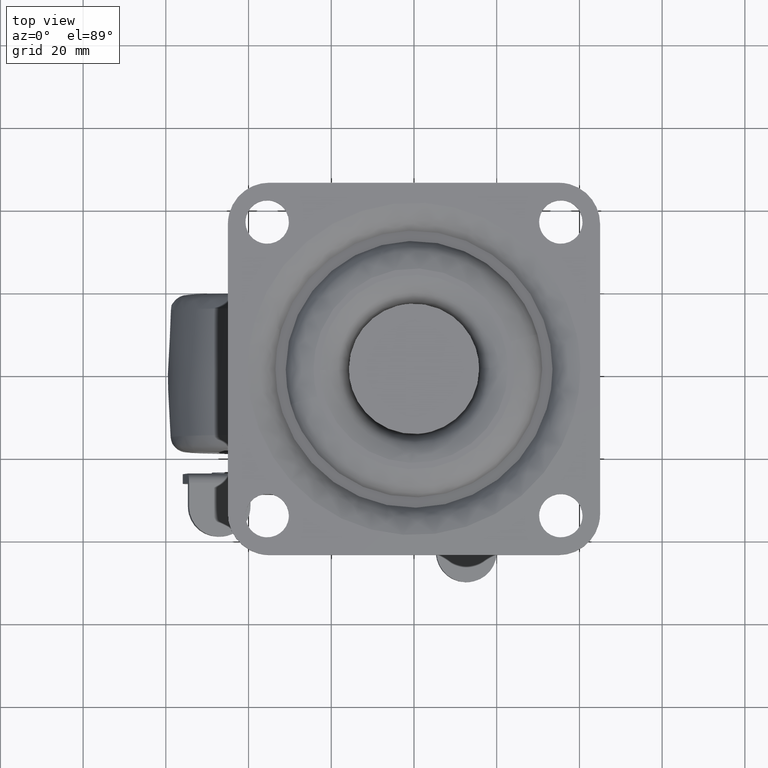
[diagram: clean part render]
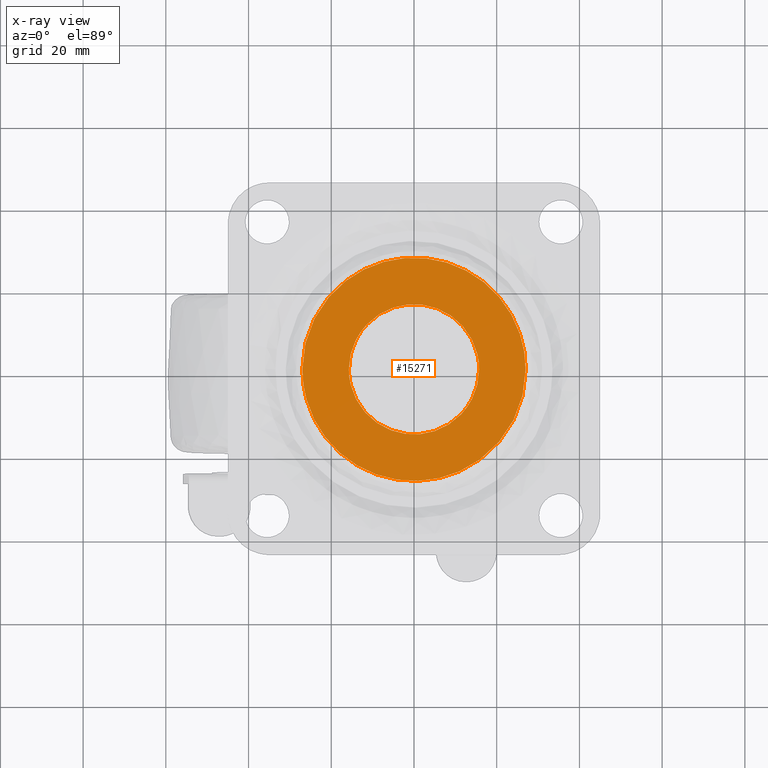
[diagram: x-ray — body ghosted, one internal face saturated and labeled with its STEP entity id]
A machine part, top view, then the same camera in x-ray: the body is ghosted and one INTERNAL B-rep face — a face not visible from any outside direction — is saturated and labeled: STEP entity #15271.
In plain terms, the highlighted face is a freeform B-spline surface patch.
Its self-contained STEP definition (entity closure, byte-faithful):
#15052=CARTESIAN_POINT('',(11.424646860448060,-10.841584022367480,-8.200000000000102));
#15053=VERTEX_POINT('',#15052);
#15059=CARTESIAN_POINT('',(15.750000000000000,0.0,-8.200000000000101));
#15060=VERTEX_POINT('',#15059);
#15061=CARTESIAN_POINT('',(15.750000000000000,0.0,-8.200000000000101));
#15062=CARTESIAN_POINT('',(15.749999999999995,-6.283612413775906,-8.200000000000101));
#15063=CARTESIAN_POINT('',(11.424646860448073,-10.841584022367488,-8.200000000000101));
#15071=(BOUNDED_CURVE()B_SPLINE_CURVE(2,(#15061,#15062,#15063),.UNSPECIFIED.,.F.,.U.)B_SPLINE_CURVE_WITH_KNOTS((3,3),(0.500000000000000,0.621049519462403),.UNSPECIFIED.)CURVE()GEOMETRIC_REPRESENTATION_ITEM()RATIONAL_B_SPLINE_CURVE((1.0,0.858181666435341,0.853699661902367))REPRESENTATION_ITEM(''));
#15072=EDGE_CURVE('',#15060,#15053,#15071,.T.);
#15074=CARTESIAN_POINT('',(-11.424646860448050,10.841584022367480,-8.200000000000102));
#15075=VERTEX_POINT('',#15074);
#15076=CARTESIAN_POINT('',(-11.424646860448071,10.841584022367492,-8.200000000000101));
#15077=CARTESIAN_POINT('',(-6.766734463832701,15.750000000000002,-8.200000000000101));
#15078=CARTESIAN_POINT('',(0.0,15.750000000000000,-8.200000000000101));
#15079=CARTESIAN_POINT('',(15.749999999999995,15.749999999999995,-8.200000000000101));
#15080=CARTESIAN_POINT('',(15.750000000000000,0.0,-8.200000000000101));
#15088=(BOUNDED_CURVE()B_SPLINE_CURVE(2,(#15076,#15077,#15078,#15079,#15080),.UNSPECIFIED.,.F.,.U.)B_SPLINE_CURVE_WITH_KNOTS((3,2,3),(0.121049519462403,0.250000000000000,0.500000000000000),.UNSPECIFIED.)CURVE()GEOMETRIC_REPRESENTATION_ITEM()RATIONAL_B_SPLINE_CURVE((0.853699661902367,0.848925114751207,1.0,0.707106781186547,1.0))REPRESENTATION_ITEM(''));
#15089=EDGE_CURVE('',#15075,#15060,#15088,.T.);
#15133=CARTESIAN_POINT('',(-15.750000000000000,0.0,-8.200000000000101));
#15134=VERTEX_POINT('',#15133);
#15135=CARTESIAN_POINT('',(-15.750000000000000,0.0,-8.200000000000101));
#15136=CARTESIAN_POINT('',(-15.749999999999996,6.283612413775908,-8.200000000000101));
#15137=CARTESIAN_POINT('',(-11.424646860448071,10.841584022367492,-8.200000000000101));
#15145=(BOUNDED_CURVE()B_SPLINE_CURVE(2,(#15135,#15136,#15137),.UNSPECIFIED.,.F.,.U.)B_SPLINE_CURVE_WITH_KNOTS((3,3),(0.0,0.121049519462403),.UNSPECIFIED.)CURVE()GEOMETRIC_REPRESENTATION_ITEM()RATIONAL_B_SPLINE_CURVE((1.0,0.858181666435340,0.853699661902367))REPRESENTATION_ITEM(''));
#15146=EDGE_CURVE('',#15134,#15075,#15145,.T.);
#15148=CARTESIAN_POINT('',(11.424646860448073,-10.841584022367488,-8.200000000000101));
#15149=CARTESIAN_POINT('',(6.766734463832703,-15.750000000000002,-8.200000000000101));
#15150=CARTESIAN_POINT('',(0.0,-15.750000000000000,-8.200000000000101));
#15151=CARTESIAN_POINT('',(-15.749999999999995,-15.749999999999995,-8.200000000000101));
#15152=CARTESIAN_POINT('',(-15.750000000000000,0.0,-8.200000000000101));
#15160=(BOUNDED_CURVE()B_SPLINE_CURVE(2,(#15148,#15149,#15150,#15151,#15152),.UNSPECIFIED.,.F.,.U.)B_SPLINE_CURVE_WITH_KNOTS((3,2,3),(0.621049519462403,0.750000000000000,1.0),.UNSPECIFIED.)CURVE()GEOMETRIC_REPRESENTATION_ITEM()RATIONAL_B_SPLINE_CURVE((0.853699661902367,0.848925114751207,1.0,0.707106781186547,1.0))REPRESENTATION_ITEM(''));
#15161=EDGE_CURVE('',#15053,#15134,#15160,.T.);
#15195=CARTESIAN_POINT('',(29.697299897250300,-29.697299895337441,-8.200000000000101));
#15196=CARTESIAN_POINT('',(-29.697301345643162,-29.697299895337441,-8.200000000000101));
#15197=CARTESIAN_POINT('',(29.697299897250300,29.697301343730309,-8.200000000000101));
#15198=CARTESIAN_POINT('',(-29.697301345643162,29.697301343730309,-8.200000000000101));
#15199=B_SPLINE_SURFACE_WITH_KNOTS('',1,1,((#15195,#15197),(#15196,#15198)),.UNSPECIFIED.,.F.,.F.,.U.,(2,2),(2,2),(0.0,59.394601242893458),(0.0,59.394601239067747),.UNSPECIFIED.);
#15200=CARTESIAN_POINT('',(27.000000001739039,2.634884E-016,-8.200000000000051));
#15201=VERTEX_POINT('',#15200);
#15202=CARTESIAN_POINT('',(-27.000000001739039,-2.033979E-015,-8.199999999999999));
#15203=VERTEX_POINT('',#15202);
#15204=CARTESIAN_POINT('',(27.000000001739039,2.634884E-016,-8.200000000000051));
#15205=CARTESIAN_POINT('',(27.000059788300799,-1.325335467183702,-8.200000000000060));
#15206=CARTESIAN_POINT('',(26.792268587396929,-4.141722424634215,-8.200000000000042));
#15207=CARTESIAN_POINT('',(25.970839307060579,-7.648618260294605,-8.200000000000056));
#15208=CARTESIAN_POINT('',(24.872956758826820,-10.601800385348829,-8.200000000000058));
#15209=CARTESIAN_POINT('',(23.436410380047018,-13.592049589555870,-8.200000000000010));
#15210=CARTESIAN_POINT('',(21.279617928050911,-16.819786257627118,-8.200000000000046));
#15211=CARTESIAN_POINT('',(18.168908740760418,-20.127504592238441,-8.200000000000072));
#15212=CARTESIAN_POINT('',(15.007758780426339,-22.563360661771569,-8.199999999999951));
#15213=CARTESIAN_POINT('',(11.674592187149790,-24.424578395647170,-8.200000000000223));
#15214=CARTESIAN_POINT('',(8.698104161791557,-25.625475688907461,-8.200000000000047));
#15215=CARTESIAN_POINT('',(5.230995456071364,-26.573582479409438,-8.199999999999786));
#15216=CARTESIAN_POINT('',(1.770358724804532,-27.032803380255991,-8.200000000000630));
#15217=CARTESIAN_POINT('',(-1.603817640623454,-27.001609412372030,-8.199999999999555));
#15218=CARTESIAN_POINT('',(-5.064171435773509,-26.607278960972440,-8.200000000000410));
#15219=CARTESIAN_POINT('',(-8.449730036621464,-25.748194804824220,-8.199999999999843));
#15220=CARTESIAN_POINT('',(-11.614254445084219,-24.425849923015729,-8.200000000000051));
#15221=CARTESIAN_POINT('',(-14.092198903888720,-23.081767907624720,-8.200000000000005));
#15222=CARTESIAN_POINT('',(-16.290469945314332,-21.593352945402181,-8.200000000000019));
#15223=CARTESIAN_POINT('',(-18.490374152124922,-19.742264790410339,-8.200000000000001));
#15224=CARTESIAN_POINT('',(-20.870157839107851,-17.273396573859440,-8.200000000000015));
#15225=CARTESIAN_POINT('',(-23.272939756120589,-13.949244281937229,-8.199999999999958));
#15226=CARTESIAN_POINT('',(-25.071893112480439,-10.263167851223940,-8.200000000000156));
#15227=CARTESIAN_POINT('',(-26.229628892722889,-6.684878888436626,-8.199999999999518));
#15228=CARTESIAN_POINT('',(-26.857512151997209,-3.423836122725524,-8.200000000001431));
#15229=CARTESIAN_POINT('',(-27.000025726324889,-1.104462857147788,-8.199999999999019));
#15230=CARTESIAN_POINT('',(-27.000000001739039,-2.033979E-015,-8.199999999999999));
#15231=B_SPLINE_CURVE_WITH_KNOTS('',3,(#15204,#15205,#15206,#15207,#15208,#15209,#15210,#15211,#15212,#15213,#15214,#15215,#15216,#15217,#15218,#15219,#15220,#15221,#15222,#15223,#15224,#15225,#15226,#15227,#15228,#15229,#15230),.UNSPECIFIED.,.F.,.U.,(4,1,1,1,1,1,1,1,1,1,1,1,1,1,1,1,1,1,1,1,1,1,1,1,4),(0.000000102047991,3.976013091894885,8.449174064406009,10.768520831215641,13.419255515052431,18.389390014275850,22.365478648804650,27.004254118298000,30.317683145466841,33.796750918287600,36.613170176226653,41.086218469489062,44.233880177756589,46.718935927809568,51.523378650124563,54.671155121315472,56.990515826156880,59.972606158726279,62.623330201269169,65.605402775894788,70.244186655266461,74.882951030542927,77.864993738503841,81.509742557205797,84.823134712338017),.UNSPECIFIED.);
#15232=EDGE_CURVE('',#15201,#15203,#15231,.T.);
#15233=ORIENTED_EDGE('',*,*,#15232,.F.);
#15234=CARTESIAN_POINT('',(-27.000000001739039,-2.033979E-015,-8.199999999999999));
#15235=CARTESIAN_POINT('',(-27.000365881728960,1.932844755084178,-8.199999999999982));
#15236=CARTESIAN_POINT('',(-26.696202965761231,4.749066578085253,-8.200000000000021));
#15237=CARTESIAN_POINT('',(-25.528295258104691,9.072607688587496,-8.200000000000028));
#15238=CARTESIAN_POINT('',(-23.998840014790751,12.640620932460010,-8.199999999999948));
#15239=CARTESIAN_POINT('',(-21.605871611634718,16.368568970700480,-8.200000000000077));
#15240=CARTESIAN_POINT('',(-19.183851887520550,19.107678154293978,-8.199999999999953));
#15241=CARTESIAN_POINT('',(-16.768445667571989,21.217081193858959,-8.200000000000017));
#15242=CARTESIAN_POINT('',(-14.428037111301670,22.886992000738800,-8.200000000000012));
#15243=CARTESIAN_POINT('',(-11.964430226107879,24.262711717275678,-8.200000000000019));
#15244=CARTESIAN_POINT('',(-9.115308808239776,25.473676274629209,-8.199999999999964));
#15245=CARTESIAN_POINT('',(-5.776057786376843,26.475562470429999,-8.200000000000211));
#15246=CARTESIAN_POINT('',(-2.211613344066675,26.993087276506280,-8.199999999999649));
#15247=CARTESIAN_POINT('',(1.659113723160768,27.028702822526650,-8.200000000000532));
#15248=CARTESIAN_POINT('',(4.903042653986242,26.628617854452820,-8.199999999999786));
#15249=CARTESIAN_POINT('',(8.169538356111367,25.788979487731641,-8.200000000000008));
#15250=CARTESIAN_POINT('',(11.432471865008210,24.564858591894531,-8.200000000000330));
#15251=CARTESIAN_POINT('',(14.977256432831441,22.613875576846631,-8.199999999999349));
#15252=CARTESIAN_POINT('',(17.932743334255768,20.277948158795429,-8.200000000000911));
#15253=CARTESIAN_POINT('',(20.379929587169659,17.800501373496179,-8.200000000000548));
#15254=CARTESIAN_POINT('',(22.499978420036580,15.101122345030250,-8.199999999999376));
#15255=CARTESIAN_POINT('',(24.640970817466641,11.348829548946810,-8.200000000000539));
#15256=CARTESIAN_POINT('',(25.990157230074960,7.649739404315277,-8.199999999999690));
#15257=CARTESIAN_POINT('',(26.814502619160368,3.755145646511647,-8.200000000000298));
#15258=CARTESIAN_POINT('',(27.000109040935222,1.435812815126353,-8.199999999999930));
#15259=CARTESIAN_POINT('',(27.000000001739039,2.634884E-016,-8.200000000000051));
#15260=B_SPLINE_CURVE_WITH_KNOTS('',3,(#15234,#15235,#15236,#15237,#15238,#15239,#15240,#15241,#15242,#15243,#15244,#15245,#15246,#15247,#15248,#15249,#15250,#15251,#15252,#15253,#15254,#15255,#15256,#15257,#15258,#15259),.UNSPECIFIED.,.F.,.U.,(4,1,1,1,1,1,1,1,1,1,1,1,1,1,1,1,1,1,1,1,1,1,1,4),(0.000000101649363,5.798430214599193,8.449174064045167,13.419255514713390,17.395355984795330,21.702797505948030,24.353522664735390,27.004254118021151,30.317683145205290,32.802714034161497,36.281804843200732,40.754924906400838,43.571248899397112,47.878632983881921,50.529388570411548,53.677098126107659,58.315882772121569,62.623330201160712,64.942719357560250,68.753149578405427,72.894920885703471,77.864993738470588,80.515713890773824,84.823134712338856),.UNSPECIFIED.);
#15261=EDGE_CURVE('',#15203,#15201,#15260,.T.);
#15262=ORIENTED_EDGE('',*,*,#15261,.F.);
#15263=EDGE_LOOP('',(#15233,#15262));
#15264=FACE_OUTER_BOUND('',#15263,.T.);
#15265=ORIENTED_EDGE('',*,*,#15072,.T.);
#15266=ORIENTED_EDGE('',*,*,#15161,.T.);
#15267=ORIENTED_EDGE('',*,*,#15146,.T.);
#15268=ORIENTED_EDGE('',*,*,#15089,.T.);
#15269=EDGE_LOOP('',(#15265,#15266,#15267,#15268));
#15270=FACE_BOUND('',#15269,.T.);
#15271=ADVANCED_FACE('',(#15264,#15270),#15199,.F.);